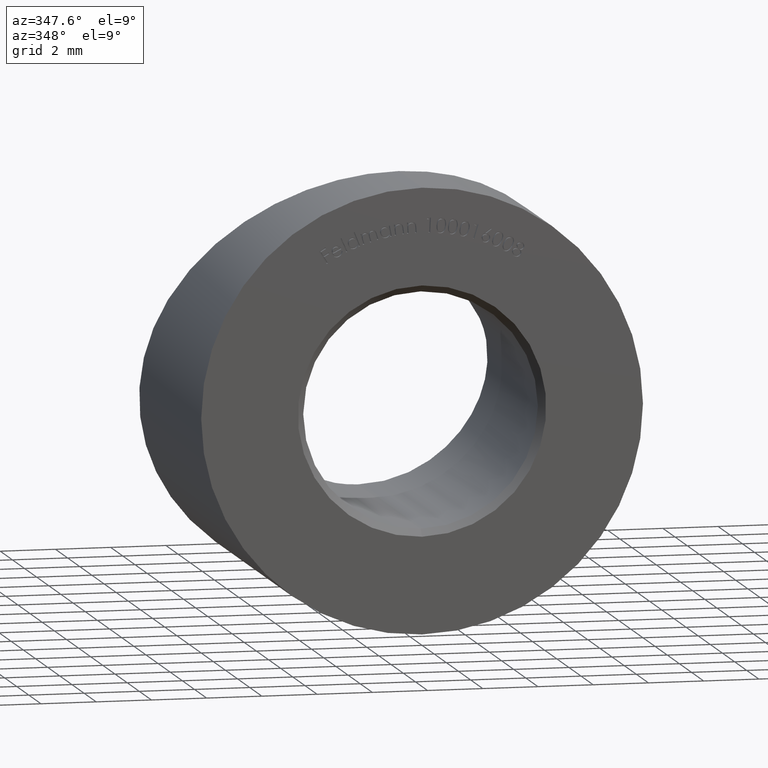
[diagram: clean part render]
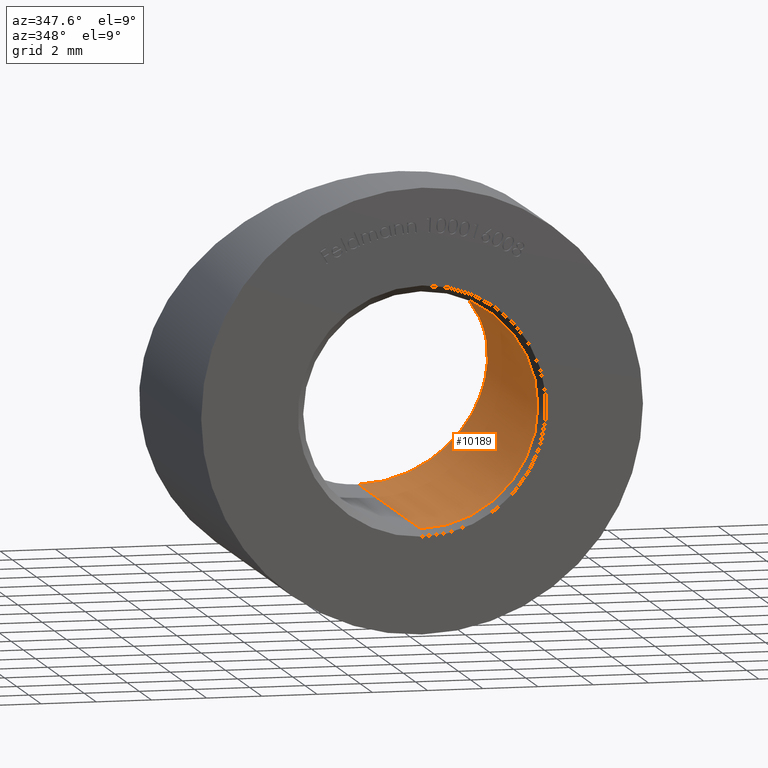
[diagram: same view with one face highlighted and labeled with its STEP entity id]
A machine part, auxiliary view. The second image highlights one B-rep face of the part: STEP entity #10189.
In plain terms, the highlighted cylindrical surface (partial cylindrical patch) has radius 4.25 mm, axis along (-0, -1, -0).
Its self-contained STEP definition (entity closure, byte-faithful):
#235 = VERTEX_POINT ( 'NONE', #2610 ) ;
#1140 = CARTESIAN_POINT ( 'NONE',  ( 4.205306424843250600, 8.317501607366516200, 0.6663105509911470000 ) ) ;
#1186 = CARTESIAN_POINT ( 'NONE',  ( 1.843719901694344200, 6.210369243036006500, 3.831926855029682800 ) ) ;
#1298 = CARTESIAN_POINT ( 'NONE',  ( 4.238399741241989800, 8.464631599130283800, 0.4095818152073434900 ) ) ;
#1326 = DIRECTION ( 'NONE',  ( 0.0000000000000000000, 0.0000000000000000000, -1.000000000000000000 ) ) ;
#2093 = EDGE_CURVE ( 'NONE', #6302, #235, #11946, .T. ) ;
#2106 = CARTESIAN_POINT ( 'NONE',  ( 1.177639016867445300, 10.45803337259568400, -4.094357018888777200 ) ) ;
#2294 = CARTESIAN_POINT ( 'NONE',  ( 1.450932984318370500, 6.080228472283606900, 4.004891942090280200 ) ) ;
#2397 = CARTESIAN_POINT ( 'NONE',  ( 5.204761487757052600E-016, 5.892438276536621400, 4.250000000000000000 ) ) ;
#2513 = EDGE_CURVE ( 'NONE', #4243, #9465, #7329, .T. ) ;
#2610 = CARTESIAN_POINT ( 'NONE',  ( 5.204748896376249700E-016, 0.2500000000000175400, 4.250000000000000000 ) ) ;
#2710 = ORIENTED_EDGE ( 'NONE', *, *, #2093, .T. ) ;
#3063 = CARTESIAN_POINT ( 'NONE',  ( 0.3013987354280634500, 10.50756172346335400, -4.250000000000000000 ) ) ;
#3197 = CARTESIAN_POINT ( 'NONE',  ( 1.465213061265742800, 10.42772645553476500, -4.000340168580264900 ) ) ;
#3309 = CARTESIAN_POINT ( 'NONE',  ( 0.0000000000000000000, 0.2500000000000175400, 0.0000000000000000000 ) ) ;
#3334 = CARTESIAN_POINT ( 'NONE',  ( 4.094931195970963800, 9.289370172173672600, -1.170106797890719800 ) ) ;
#3426 = CARTESIAN_POINT ( 'NONE',  ( 3.506391439501375600, 9.844488134117961300, -2.417917964692337200 ) ) ;
#4243 = VERTEX_POINT ( 'NONE', #6318 ) ;
#4503 = CARTESIAN_POINT ( 'NONE',  ( 1.971933895044113900, 6.258612523914383300, 3.767459108054814500 ) ) ;
#4594 = ORIENTED_EDGE ( 'NONE', *, *, #2513, .F. ) ;
#5558 = CARTESIAN_POINT ( 'NONE',  ( 5.204748896376249700E-016, 13.27423840953968100, 4.250000000000000000 ) ) ;
#5581 = CARTESIAN_POINT ( 'NONE',  ( 3.910729782665437700, 9.529371493304129400, -1.686358201919091200 ) ) ;
#5683 = CARTESIAN_POINT ( 'NONE',  ( 2.733969847925288700, 10.17381397108269600, -3.267176919152948100 ) ) ;
#5972 = EDGE_LOOP ( 'NONE', ( #7216, #4594, #14170, #2710 ) ) ;
#6086 = CYLINDRICAL_SURFACE ( 'NONE', #10125, 4.250000000000000000 ) ;
#6302 = VERTEX_POINT ( 'NONE', #10555 ) ;
#6318 = CARTESIAN_POINT ( 'NONE',  ( 0.0000000000000000000, 10.50756172346335400, -4.250000000000000000 ) ) ;
#6553 = CARTESIAN_POINT ( 'NONE',  ( 0.0000000000000000000, 10.50756172346335400, -4.250000000000000000 ) ) ;
#6643 = CARTESIAN_POINT ( 'NONE',  ( 3.335040367508684600, 9.938093545954199500, -2.649862216607125700 ) ) ;
#6750 = CARTESIAN_POINT ( 'NONE',  ( 0.5948774723770048300, 5.916704571238121000, 4.218624278683123000 ) ) ;
#6805 = CARTESIAN_POINT ( 'NONE',  ( 0.2972889667897916600, 5.892438276536623200, 4.250000000000000900 ) ) ;
#6978 = DIRECTION ( 'NONE',  ( -0.0000000000000000000, -1.000000000000000000, -0.0000000000000000000 ) ) ;
#7216 = ORIENTED_EDGE ( 'NONE', *, *, #9392, .F. ) ;
#7255 = VECTOR ( 'NONE', #13266, 1000.000000000000000 ) ;
#7329 = B_SPLINE_CURVE_WITH_KNOTS ( 'NONE', 3,
 ( #6553, #3063, #14218, #2106, #3197, #7646, #7787, #5683, #13192, #6643, #3426, #7737, #5581, #3334, #8900, #7881, #10084, #1298, #1140, #10129, #12184, #13292, #13395, #9004, #7692, #9927, #13241, #4503, #1186, #2294, #12236, #6750, #6805, #2397 ),
 .UNSPECIFIED., .F., .F.,
 ( 4, 2, 2, 2, 2, 2, 2, 2, 2, 2, 2, 2, 2, 2, 2, 2, 4 ),
 ( 0.0000000000000000000, 0.0008912358772161768600, 0.001782471754432353700, 0.002673707631648531200, 0.003564943508864709200, 0.004456179386080886200, 0.005347415263297064200, 0.006238651140513241200, 0.007129887017729420000, 0.008021122894945595400, 0.008912358772161772500, 0.01069483052659413000, 0.01158606640381031100, 0.01203168434241840000, 0.01247730228102648900, 0.01336853815824267000, 0.01425977403545884900 ),
 .UNSPECIFIED. ) ;
#7646 = CARTESIAN_POINT ( 'NONE',  ( 2.003977124059982600, 10.34727622887568500, -3.759474227269657700 ) ) ;
#7692 = CARTESIAN_POINT ( 'NONE',  ( 2.669724395543061800, 6.589057017289258400, 3.318153406983791200 ) ) ;
#7705 = DIRECTION ( 'NONE',  ( 0.0000000000000000000, 0.0000000000000000000, 1.000000000000000000 ) ) ;
#7737 = CARTESIAN_POINT ( 'NONE',  ( 3.793640639955123900, 9.640139289896801200, -1.936336465047159100 ) ) ;
#7787 = CARTESIAN_POINT ( 'NONE',  ( 2.257769448322863400, 10.29717070830940400, -3.612687817765361900 ) ) ;
#7881 = CARTESIAN_POINT ( 'NONE',  ( 4.241320012219623500, 8.893942120099129800, -0.3799410888737312400 ) ) ;
#8563 = EDGE_CURVE ( 'NONE', #4243, #6302, #8615, .T. ) ;
#8615 = LINE ( 'NONE', #8912, #10871 ) ;
#8900 = CARTESIAN_POINT ( 'NONE',  ( 4.160930702642752400, 9.160766267467121100, -0.9054315903888795500 ) ) ;
#8912 = CARTESIAN_POINT ( 'NONE',  ( 0.0000000000000000000, 13.27423840953968100, -4.250000000000000000 ) ) ;
#9004 = CARTESIAN_POINT ( 'NONE',  ( 2.874701802103051900, 6.716029650190495000, 3.141732228635582200 ) ) ;
#9392 = EDGE_CURVE ( 'NONE', #9465, #235, #12785, .T. ) ;
#9465 = VERTEX_POINT ( 'NONE', #10928 ) ;
#9669 = FACE_OUTER_BOUND ( 'NONE', #5972, .T. ) ;
#9893 = DIRECTION ( 'NONE',  ( -0.0000000000000000000, -1.000000000000000000, -0.0000000000000000000 ) ) ;
#9927 = CARTESIAN_POINT ( 'NONE',  ( 2.333604769198211100, 6.416230021394023100, 3.554652778582506400 ) ) ;
#10084 = CARTESIAN_POINT ( 'NONE',  ( 4.256548193388791600, 8.754528440044811800, -0.1165637476547323300 ) ) ;
#10125 = AXIS2_PLACEMENT_3D ( 'NONE', #11311, #6978, #1326 ) ;
#10129 = CARTESIAN_POINT ( 'NONE',  ( 4.094348294888195700, 8.019750877989455500, 1.168282464704572000 ) ) ;
#10189 = ADVANCED_FACE ( 'NONE', ( #9669 ), #6086, .F. ) ;
#10555 = CARTESIAN_POINT ( 'NONE',  ( 0.0000000000000000000, 0.2500000000000175400, -4.250000000000000000 ) ) ;
#10871 = VECTOR ( 'NONE', #9893, 1000.000000000000000 ) ;
#10928 = CARTESIAN_POINT ( 'NONE',  ( 5.204761487757052600E-016, 5.892438276536621400, 4.250000000000000000 ) ) ;
#11311 = CARTESIAN_POINT ( 'NONE',  ( 0.0000000000000000000, 13.27423840953968100, 0.0000000000000000000 ) ) ;
#11854 = AXIS2_PLACEMENT_3D ( 'NONE', #3309, #13309, #7705 ) ;
#11946 = CIRCLE ( 'NONE', #11854, 4.250000000000000000 ) ;
#12184 = CARTESIAN_POINT ( 'NONE',  ( 4.016100522842376300, 7.868565156445593600, 1.414405781041752500 ) ) ;
#12236 = CARTESIAN_POINT ( 'NONE',  ( 1.175718972896638200, 6.011495839265856000, 4.094918180941743200 ) ) ;
#12785 = LINE ( 'NONE', #5558, #7255 ) ;
#13192 = CARTESIAN_POINT ( 'NONE',  ( 2.950019060406880600, 10.10202233721576400, -3.072727056402926800 ) ) ;
#13241 = CARTESIAN_POINT ( 'NONE',  ( 2.216641132121370800, 6.361497143100459400, 3.628880475942506000 ) ) ;
#13266 = DIRECTION ( 'NONE',  ( -0.0000000000000000000, -1.000000000000000000, -0.0000000000000000000 ) ) ;
#13292 = CARTESIAN_POINT ( 'NONE',  ( 3.713823828809493600, 7.415196589592310900, 2.130361720609564200 ) ) ;
#13309 = DIRECTION ( 'NONE',  ( 0.0000000000000000000, -1.000000000000000000, 0.0000000000000000000 ) ) ;
#13395 = CARTESIAN_POINT ( 'NONE',  ( 3.432777612560507000, 7.123211545626391600, 2.562441268117324100 ) ) ;
#14170 = ORIENTED_EDGE ( 'NONE', *, *, #8563, .T. ) ;
#14218 = CARTESIAN_POINT ( 'NONE',  ( 0.5971129502786192100, 10.49765430588454500, -4.218299322805566300 ) ) ;